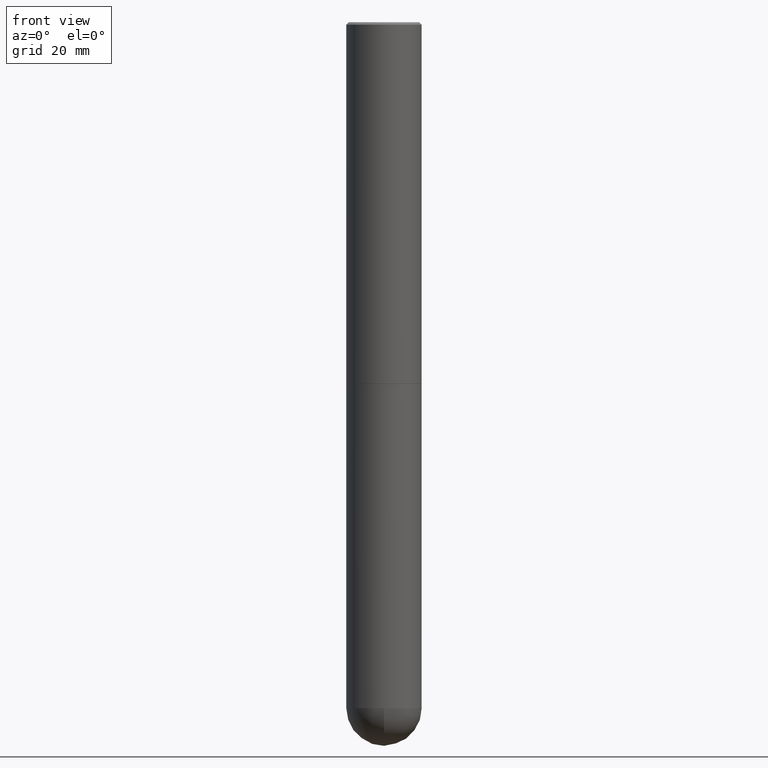
[diagram: clean part render]
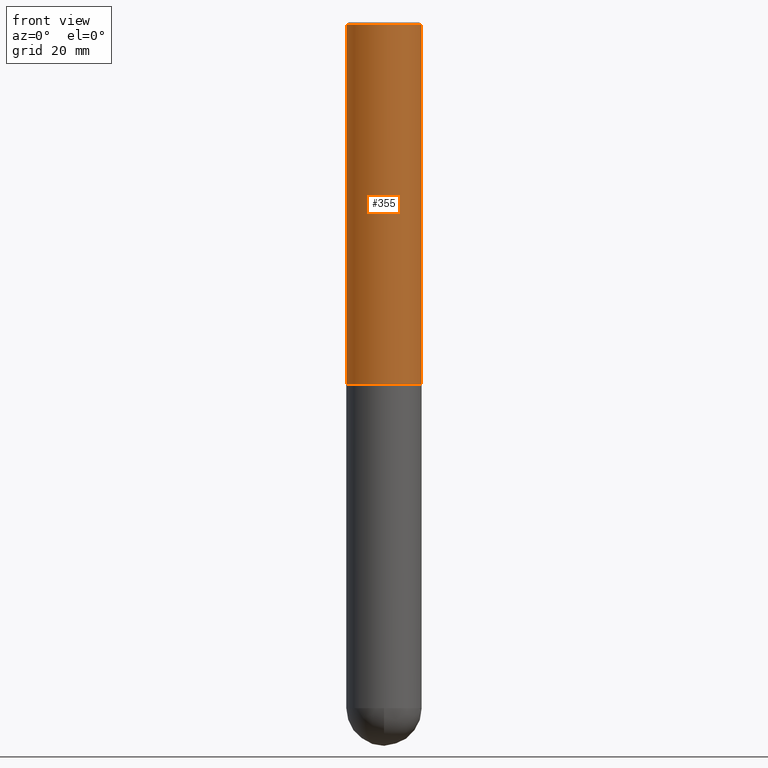
[diagram: same view with one face highlighted and labeled with its STEP entity id]
A machine part, front view. The second image highlights one B-rep face of the part: STEP entity #355.
In plain terms, the highlighted cylindrical surface (partial cylindrical patch) has radius 7.9375 mm, axis along (-0, 0, 1).
Its self-contained STEP definition (entity closure, byte-faithful):
#5 = CARTESIAN_POINT ( 'NONE',  ( -0.3125000000000003331, -3.049945031733409719E-15, -2.999000000000000554 ) ) ;
#51 = VERTEX_POINT ( 'NONE', #128 ) ;
#53 = CARTESIAN_POINT ( 'NONE',  ( 7.333960949749226429E-29, -1.047095253519059492E-14, -2.999000000000000554 ) ) ;
#60 = CARTESIAN_POINT ( 'NONE',  ( 0.3125000000000000000, -2.213735251080466911E-15, -0.02000000000000006981 ) ) ;
#70 = EDGE_CURVE ( 'NONE', #51, #372, #357, .T. ) ;
#74 = DIRECTION ( 'NONE',  ( -2.445468806185136597E-29, 3.491481338843145583E-15, 1.000000000000000000 ) ) ;
#81 = DIRECTION ( 'NONE',  ( 1.000000000000000000, -6.982962677686266711E-15, 4.876176775795935232E-29 ) ) ;
#113 = LINE ( 'NONE', #240, #323 ) ;
#128 = CARTESIAN_POINT ( 'NONE',  ( 0.3125000000000003331, -1.265312837196755485E-14, -2.999000000000000554 ) ) ;
#139 = VERTEX_POINT ( 'NONE', #5 ) ;
#141 = DIRECTION ( 'NONE',  ( 1.000000000000000000, -6.982962677686268288E-15, 0.000000000000000000 ) ) ;
#148 = DIRECTION ( 'NONE',  ( -2.445468806185136877E-29, 3.491481338843145188E-15, 1.000000000000000000 ) ) ;
#150 = EDGE_LOOP ( 'NONE', ( #196, #327, #276, #166 ) ) ;
#157 = AXIS2_PLACEMENT_3D ( 'NONE', #373, #328, #306 ) ;
#163 = CARTESIAN_POINT ( 'NONE',  ( 0.3125000000000001665, -2.182175836776959530E-15, 1.523805242436230636E-29 ) ) ;
#166 = ORIENTED_EDGE ( 'NONE', *, *, #366, .F. ) ;
#175 = DIRECTION ( 'NONE',  ( -2.445468806185136597E-29, 3.491481338843145583E-15, 1.000000000000000000 ) ) ;
#179 = CYLINDRICAL_SURFACE ( 'NONE', #234, 0.3125000000000001665 ) ;
#196 = ORIENTED_EDGE ( 'NONE', *, *, #254, .F. ) ;
#210 = VECTOR ( 'NONE', #288, 39.37007874015748143 ) ;
#234 = AXIS2_PLACEMENT_3D ( 'NONE', #236, #74, #81 ) ;
#236 = CARTESIAN_POINT ( 'NONE',  ( 0.000000000000000000, 0.000000000000000000, 0.000000000000000000 ) ) ;
#240 = CARTESIAN_POINT ( 'NONE',  ( -0.3125000000000001665, 2.220446049250314264E-15, -1.537167215704658792E-29 ) ) ;
#242 = AXIS2_PLACEMENT_3D ( 'NONE', #53, #175, #141 ) ;
#254 = EDGE_CURVE ( 'NONE', #139, #334, #113, .T. ) ;
#272 = CIRCLE ( 'NONE', #242, 0.3125000000000003331 ) ;
#276 = ORIENTED_EDGE ( 'NONE', *, *, #70, .T. ) ;
#288 = DIRECTION ( 'NONE',  ( -2.445468806185136877E-29, 3.491481338843145188E-15, 1.000000000000000000 ) ) ;
#303 = FACE_OUTER_BOUND ( 'NONE', #150, .T. ) ;
#306 = DIRECTION ( 'NONE',  ( 1.000000000000000000, -6.982962677686266711E-15, 0.000000000000000000 ) ) ;
#323 = VECTOR ( 'NONE', #148, 39.37007874015748143 ) ;
#327 = ORIENTED_EDGE ( 'NONE', *, *, #358, .T. ) ;
#328 = DIRECTION ( 'NONE',  ( -2.445468806185136597E-29, 3.491481338843145583E-15, 1.000000000000000000 ) ) ;
#334 = VERTEX_POINT ( 'NONE', #361 ) ;
#355 = ADVANCED_FACE ( 'NONE', ( #303 ), #179, .T. ) ;
#357 = LINE ( 'NONE', #163, #210 ) ;
#358 = EDGE_CURVE ( 'NONE', #139, #51, #272, .T. ) ;
#361 = CARTESIAN_POINT ( 'NONE',  ( -0.3125000000000000000, 2.112346210000095443E-15, -0.02000000000000006981 ) ) ;
#366 = EDGE_CURVE ( 'NONE', #334, #372, #408, .T. ) ;
#372 = VERTEX_POINT ( 'NONE', #60 ) ;
#373 = CARTESIAN_POINT ( 'NONE',  ( 4.890937612370289799E-31, -6.982962677686315028E-17, -0.02000000000000006981 ) ) ;
#408 = CIRCLE ( 'NONE', #157, 0.3125000000000000000 ) ;